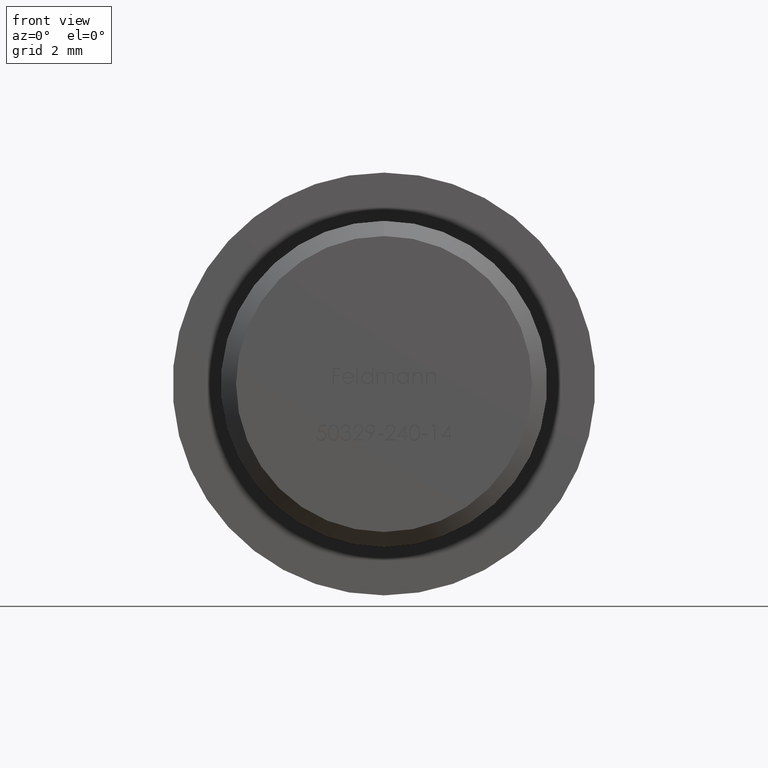
[diagram: clean part render]
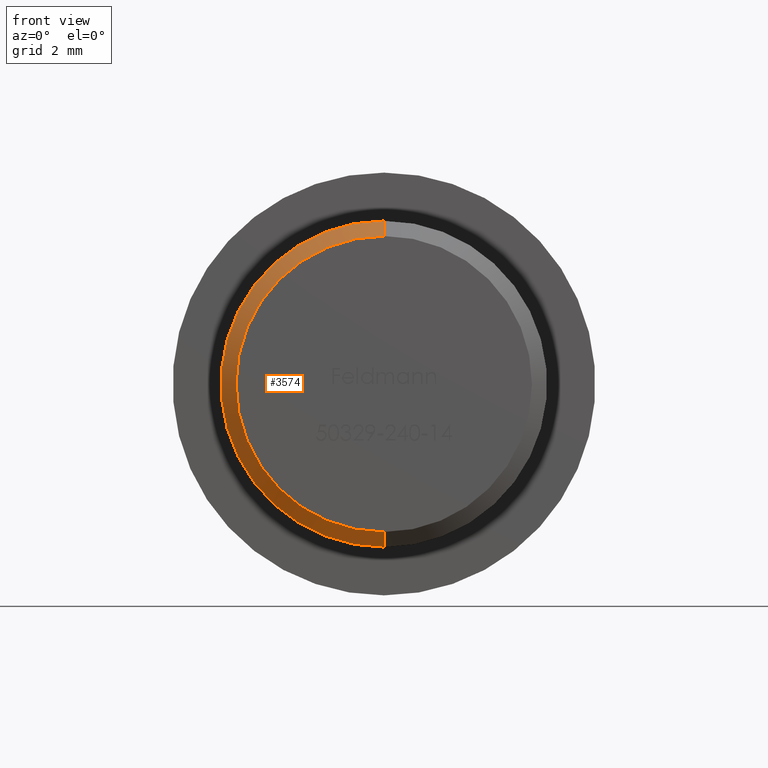
[diagram: same view with one face highlighted and labeled with its STEP entity id]
A machine part, front view. The second image highlights one B-rep face of the part: STEP entity #3574.
In plain terms, the highlighted conical surface has half-angle 45 deg.
Its self-contained STEP definition (entity closure, byte-faithful):
#746 = VERTEX_POINT ( 'NONE', #5258 ) ;
#1474 = ORIENTED_EDGE ( 'NONE', *, *, #13140, .F. ) ;
#1606 = CARTESIAN_POINT ( 'NONE',  ( 6.613092715395706500E-016, 0.5000000000000030000, 5.399999999999999500 ) ) ;
#2380 = CIRCLE ( 'NONE', #8493, 5.399999999999999500 ) ;
#2450 = CARTESIAN_POINT ( 'NONE',  ( 0.0000000000000000000, 0.5000000000000030000, 0.0000000000000000000 ) ) ;
#2463 = CARTESIAN_POINT ( 'NONE',  ( 0.0000000000000000000, -3.673940397442058900E-017, 0.0000000000000000000 ) ) ;
#2696 = VERTEX_POINT ( 'NONE', #12299 ) ;
#3574 = ADVANCED_FACE ( 'NONE', ( #6138 ), #4262, .T. ) ;
#3653 = DIRECTION ( 'NONE',  ( 0.0000000000000000000, 0.0000000000000000000, 1.000000000000000000 ) ) ;
#3905 = EDGE_CURVE ( 'NONE', #2696, #8187, #4608, .T. ) ;
#4225 = CARTESIAN_POINT ( 'NONE',  ( 6.000769315822028800E-016, -3.673940397442058900E-017, -4.899999999999997700 ) ) ;
#4262 = CONICAL_SURFACE ( 'NONE', #7215, 4.899999999999997700, 0.7853981633974466100 ) ;
#4608 = LINE ( 'NONE', #4225, #5274 ) ;
#4842 = ORIENTED_EDGE ( 'NONE', *, *, #3905, .F. ) ;
#4979 = CARTESIAN_POINT ( 'NONE',  ( 0.0000000000000000000, -3.673940397442058900E-017, 4.899999999999997700 ) ) ;
#5258 = CARTESIAN_POINT ( 'NONE',  ( 0.0000000000000000000, -3.673940397442058900E-017, 4.899999999999997700 ) ) ;
#5274 = VECTOR ( 'NONE', #8761, 1000.000000000000000 ) ;
#5345 = AXIS2_PLACEMENT_3D ( 'NONE', #14044, #12023, #13072 ) ;
#5754 = VERTEX_POINT ( 'NONE', #1606 ) ;
#6138 = FACE_OUTER_BOUND ( 'NONE', #11087, .T. ) ;
#6565 = CARTESIAN_POINT ( 'NONE',  ( 0.0000000000000000000, 0.5000000000000030000, -5.399999999999999500 ) ) ;
#7099 = ORIENTED_EDGE ( 'NONE', *, *, #12661, .F. ) ;
#7215 = AXIS2_PLACEMENT_3D ( 'NONE', #2463, #12338, #3653 ) ;
#8187 = VERTEX_POINT ( 'NONE', #6565 ) ;
#8493 = AXIS2_PLACEMENT_3D ( 'NONE', #2450, #9210, #10269 ) ;
#8668 = LINE ( 'NONE', #4979, #11748 ) ;
#8761 = DIRECTION ( 'NONE',  ( 8.659560562354918100E-017, 0.7071067811865487900, -0.7071067811865463500 ) ) ;
#9210 = DIRECTION ( 'NONE',  ( 0.0000000000000000000, 1.000000000000000000, 0.0000000000000000000 ) ) ;
#10087 = EDGE_CURVE ( 'NONE', #746, #5754, #8668, .T. ) ;
#10269 = DIRECTION ( 'NONE',  ( 0.0000000000000000000, 0.0000000000000000000, -1.000000000000000000 ) ) ;
#10402 = DIRECTION ( 'NONE',  ( 0.0000000000000000000, 0.7071067811865487900, 0.7071067811865463500 ) ) ;
#11087 = EDGE_LOOP ( 'NONE', ( #4842, #7099, #11781, #1474 ) ) ;
#11748 = VECTOR ( 'NONE', #10402, 1000.000000000000000 ) ;
#11781 = ORIENTED_EDGE ( 'NONE', *, *, #10087, .T. ) ;
#12023 = DIRECTION ( 'NONE',  ( -0.0000000000000000000, -1.000000000000000000, -0.0000000000000000000 ) ) ;
#12299 = CARTESIAN_POINT ( 'NONE',  ( 6.306931015608866600E-016, -3.673940397442058900E-017, -4.899999999999997700 ) ) ;
#12338 = DIRECTION ( 'NONE',  ( 0.0000000000000000000, 1.000000000000000000, 0.0000000000000000000 ) ) ;
#12661 = EDGE_CURVE ( 'NONE', #746, #2696, #13611, .T. ) ;
#13072 = DIRECTION ( 'NONE',  ( 0.0000000000000000000, 0.0000000000000000000, -1.000000000000000000 ) ) ;
#13140 = EDGE_CURVE ( 'NONE', #8187, #5754, #2380, .T. ) ;
#13611 = CIRCLE ( 'NONE', #5345, 4.899999999999997700 ) ;
#14044 = CARTESIAN_POINT ( 'NONE',  ( 0.0000000000000000000, -3.673940397442058900E-017, 0.0000000000000000000 ) ) ;